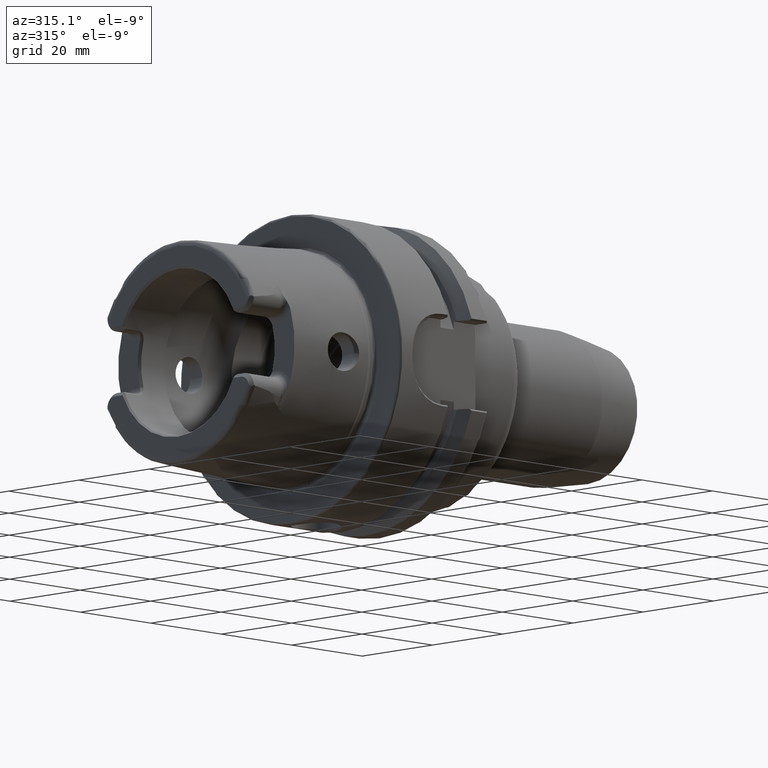
[diagram: clean part render]
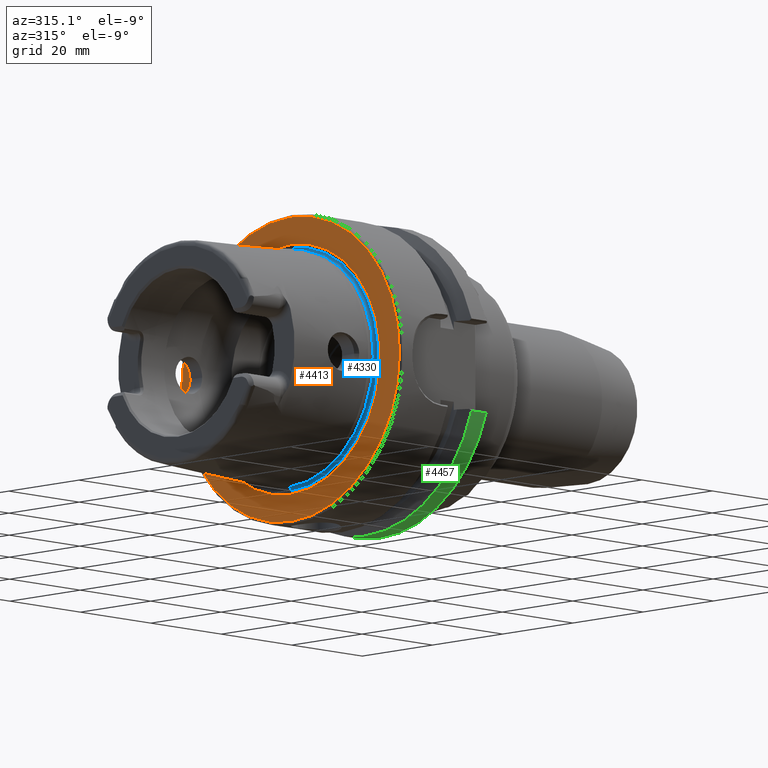
[diagram: same view with three faces highlighted in distinct colors, each labeled with its STEP entity id]
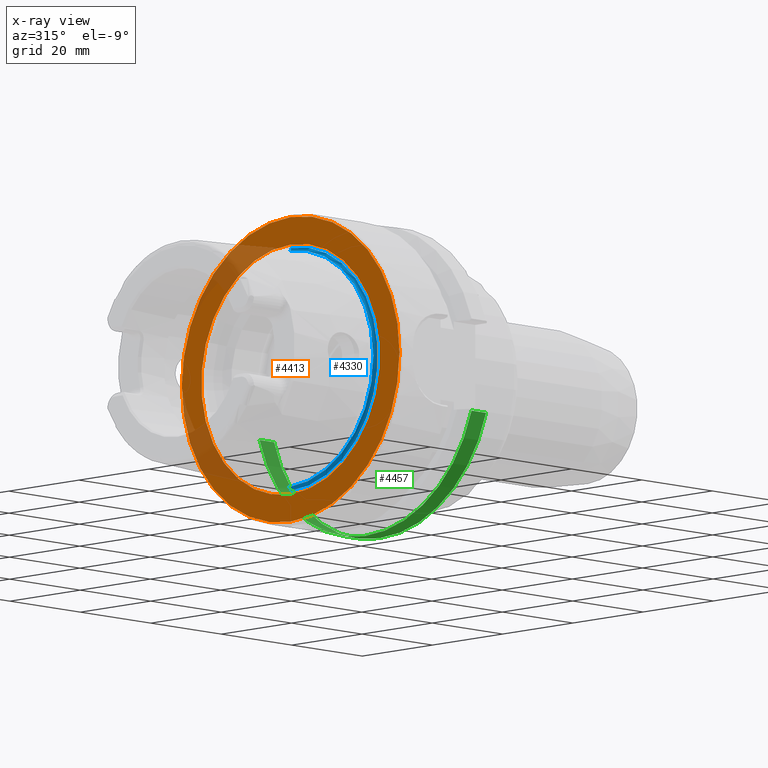
[diagram: x-ray of the same camera — body ghosted, the three highlighted faces saturated]
A machine part, auxiliary view with three faces highlighted in distinct colors.
The next image is the same camera in x-ray (body ghosted, the three faces saturated) — at least one of them is partly hidden behind the body in this view.
Their STEP definitions:

[orange] entity #4413 — the highlighted planar face has unit normal (1, 0, 0).
#1257=CARTESIAN_POINT('',(0.E0,0.E0,0.E0));
#1258=DIRECTION('',(1.E0,0.E0,0.E0));
#1259=DIRECTION('',(0.E0,0.E0,-1.E0));
#1260=AXIS2_PLACEMENT_3D('',#1257,#1258,#1259);
#1262=CARTESIAN_POINT('',(0.E0,0.E0,0.E0));
#1263=DIRECTION('',(1.E0,0.E0,0.E0));
#1264=DIRECTION('',(0.E0,0.E0,1.E0));
#1265=AXIS2_PLACEMENT_3D('',#1262,#1263,#1264);
#1267=CARTESIAN_POINT('',(0.E0,0.E0,0.E0));
#1268=DIRECTION('',(-1.E0,0.E0,0.E0));
#1269=DIRECTION('',(0.E0,0.E0,1.E0));
#1270=AXIS2_PLACEMENT_3D('',#1267,#1268,#1269);
#1272=CARTESIAN_POINT('',(0.E0,0.E0,0.E0));
#1273=DIRECTION('',(-1.E0,0.E0,0.E0));
#1274=DIRECTION('',(0.E0,0.E0,-1.E0));
#1275=AXIS2_PLACEMENT_3D('',#1272,#1273,#1274);
#2564=CARTESIAN_POINT('',(0.E0,0.E0,-2.54204E1));
#2565=CARTESIAN_POINT('',(0.E0,0.E0,2.54204E1));
#2566=VERTEX_POINT('',#2564);
#2567=VERTEX_POINT('',#2565);
#2893=CARTESIAN_POINT('',(0.E0,0.E0,3.1E1));
#2894=CARTESIAN_POINT('',(0.E0,1.138921523207E-14,-3.1E1));
#2895=VERTEX_POINT('',#2893);
#2896=VERTEX_POINT('',#2894);
#4398=CARTESIAN_POINT('',(0.E0,0.E0,0.E0));
#4399=DIRECTION('',(1.E0,0.E0,0.E0));
#4400=DIRECTION('',(0.E0,0.E0,1.E0));
#4401=AXIS2_PLACEMENT_3D('',#4398,#4399,#4400);
#4402=PLANE('',#4401);
#4404=ORIENTED_EDGE('',*,*,#4403,.F.);
#4406=ORIENTED_EDGE('',*,*,#4405,.F.);
#4407=EDGE_LOOP('',(#4404,#4406));
#4408=FACE_OUTER_BOUND('',#4407,.F.);
#4409=ORIENTED_EDGE('',*,*,#4354,.F.);
#4410=ORIENTED_EDGE('',*,*,#4339,.F.);
#4411=EDGE_LOOP('',(#4409,#4410));
#4412=FACE_BOUND('',#4411,.F.);
#4413=ADVANCED_FACE('',(#4408,#4412),#4402,.F.);
#1261=CIRCLE('',#1260,2.54204E1);
#1266=CIRCLE('',#1265,2.54204E1);
#1271=CIRCLE('',#1270,3.1E1);
#1276=CIRCLE('',#1275,3.1E1);
#4339=EDGE_CURVE('',#2567,#2566,#1266,.T.);
#4354=EDGE_CURVE('',#2566,#2567,#1261,.T.);
#4403=EDGE_CURVE('',#2895,#2896,#1271,.T.);
#4405=EDGE_CURVE('',#2896,#2895,#1276,.T.);

[blue] entity #4330 — the highlighted toroidal blend (fillet) surface has major radius 24.6204 mm and minor (blend) radius 0.6 mm.
#1197=CARTESIAN_POINT('',(-4.934638757493E-1,0.E0,0.E0));
#1198=DIRECTION('',(-1.E0,0.E0,0.E0));
#1199=DIRECTION('',(0.E0,0.E0,-1.E0));
#1200=AXIS2_PLACEMENT_3D('',#1197,#1198,#1199);
#1215=CARTESIAN_POINT('',(-4.934638757493E-1,4.761219196681E-12,-2.46204E1));
#1216=DIRECTION('',(0.E0,-1.E0,-1.933852383784E-13));
#1217=DIRECTION('',(9.902680687429E-1,2.691392393095E-14,-1.391731009505E-1));
#1218=AXIS2_PLACEMENT_3D('',#1215,#1216,#1217);
#1220=CARTESIAN_POINT('',(1.006969654957E-1,0.E0,0.E0));
#1221=DIRECTION('',(-1.E0,0.E0,0.E0));
#1222=DIRECTION('',(0.E0,0.E0,-1.E0));
#1223=AXIS2_PLACEMENT_3D('',#1220,#1221,#1222);
#1238=CARTESIAN_POINT('',(-4.934638757493E-1,-4.764327821150E-12,2.46204E1));
#1239=DIRECTION('',(0.E0,1.E0,1.935118731922E-13));
#1240=DIRECTION('',(9.902680687429E-1,-2.693154809066E-14,1.391731009505E-1));
#1241=AXIS2_PLACEMENT_3D('',#1238,#1239,#1240);
#2576=CARTESIAN_POINT('',(1.006969654957E-1,0.E0,-2.470390386058E1));
#2577=CARTESIAN_POINT('',(1.006969654957E-1,0.E0,2.470390386058E1));
#2578=VERTEX_POINT('',#2576);
#2579=VERTEX_POINT('',#2577);
#2580=CARTESIAN_POINT('',(-4.934638757493E-1,0.E0,-2.40204E1));
#2581=CARTESIAN_POINT('',(-4.934638757493E-1,0.E0,2.40204E1));
#2582=VERTEX_POINT('',#2580);
#2583=VERTEX_POINT('',#2581);
#4316=CARTESIAN_POINT('',(-4.934638757493E-1,0.E0,0.E0));
#4317=DIRECTION('',(1.E0,0.E0,0.E0));
#4318=DIRECTION('',(0.E0,6.358125017533E-3,-9.999797869188E-1));
#4319=AXIS2_PLACEMENT_3D('',#4316,#4317,#4318);
#4320=TOROIDAL_SURFACE('',#4319,2.46204E1,6.E-1);
#4322=ORIENTED_EDGE('',*,*,#4321,.F.);
#4324=ORIENTED_EDGE('',*,*,#4323,.T.);
#4325=ORIENTED_EDGE('',*,*,#4306,.T.);
#4327=ORIENTED_EDGE('',*,*,#4326,.F.);
#4328=EDGE_LOOP('',(#4322,#4324,#4325,#4327));
#4329=FACE_OUTER_BOUND('',#4328,.F.);
#4330=ADVANCED_FACE('',(#4329),#4320,.F.);
#1201=CIRCLE('',#1200,2.40204E1);
#1219=CIRCLE('',#1218,6.E-1);
#1224=CIRCLE('',#1223,2.470390386058E1);
#1242=CIRCLE('',#1241,6.E-1);
#4306=EDGE_CURVE('',#2582,#2583,#1201,.T.);
#4321=EDGE_CURVE('',#2578,#2579,#1224,.T.);
#4323=EDGE_CURVE('',#2578,#2582,#1219,.T.);
#4326=EDGE_CURVE('',#2579,#2583,#1242,.T.);

[green] entity #4457 — the highlighted cylindrical surface (partial cylindrical patch) has radius 31.5 mm, axis along (1, 0, 0).
#1287=DIRECTION('',(1.E0,0.E0,0.E0));
#1288=VECTOR('',#1287,4.122500945915E0);
#1289=CARTESIAN_POINT('',(2.137749905409E1,3.030257052423E1,-8.602570524226E0));
#1290=LINE('',#1289,#1288);
#1291=DIRECTION('',(1.E0,0.E0,0.E0));
#1292=VECTOR('',#1291,4.122500945915E0);
#1293=CARTESIAN_POINT('',(2.137749905409E1,-3.007314630073E1,
-9.373146300730E0));
#1294=LINE('',#1293,#1292);
#1403=CARTESIAN_POINT('',(2.55E1,0.E0,0.E0));
#1404=DIRECTION('',(-1.E0,0.E0,0.E0));
#1405=DIRECTION('',(0.E0,9.619863658485E-1,-2.730974769596E-1));
#1406=AXIS2_PLACEMENT_3D('',#1403,#1404,#1405);
#1413=CARTESIAN_POINT('',(2.55E1,-3.007314630073E1,-9.373146300730E0));
#1680=CARTESIAN_POINT('',(2.55E1,3.030257052423E1,-8.602570524226E0));
#2053=CARTESIAN_POINT('',(2.137749905409E1,3.030257052423E1,-8.602570524226E0));
#2083=CARTESIAN_POINT('',(2.137749905409E1,-3.007314630073E1,
-9.373146300730E0));
#2085=CARTESIAN_POINT('',(2.137749905409E1,0.E0,0.E0));
#2086=DIRECTION('',(1.E0,0.E0,0.E0));
#2087=DIRECTION('',(0.E0,-9.547030571660E-1,-2.975602000232E-1));
#2088=AXIS2_PLACEMENT_3D('',#2085,#2086,#2087);
#2861=VERTEX_POINT('',#2083);
#2883=VERTEX_POINT('',#2053);
#2901=VERTEX_POINT('',#1413);
#2905=VERTEX_POINT('',#1680);
#4442=CARTESIAN_POINT('',(0.E0,0.E0,0.E0));
#4443=DIRECTION('',(1.E0,0.E0,0.E0));
#4444=DIRECTION('',(0.E0,0.E0,1.E0));
#4445=AXIS2_PLACEMENT_3D('',#4442,#4443,#4444);
#4446=CYLINDRICAL_SURFACE('',#4445,3.15E1);
#4448=ORIENTED_EDGE('',*,*,#4447,.F.);
#4450=ORIENTED_EDGE('',*,*,#4449,.F.);
#4452=ORIENTED_EDGE('',*,*,#4451,.F.);
#4454=ORIENTED_EDGE('',*,*,#4453,.T.);
#4455=EDGE_LOOP('',(#4448,#4450,#4452,#4454));
#4456=FACE_OUTER_BOUND('',#4455,.F.);
#4457=ADVANCED_FACE('',(#4456),#4446,.T.);
#1407=CIRCLE('',#1406,3.15E1);
#2089=CIRCLE('',#2088,3.15E1);
#4447=EDGE_CURVE('',#2905,#2901,#1407,.T.);
#4449=EDGE_CURVE('',#2883,#2905,#1290,.T.);
#4451=EDGE_CURVE('',#2861,#2883,#2089,.T.);
#4453=EDGE_CURVE('',#2861,#2901,#1294,.T.);